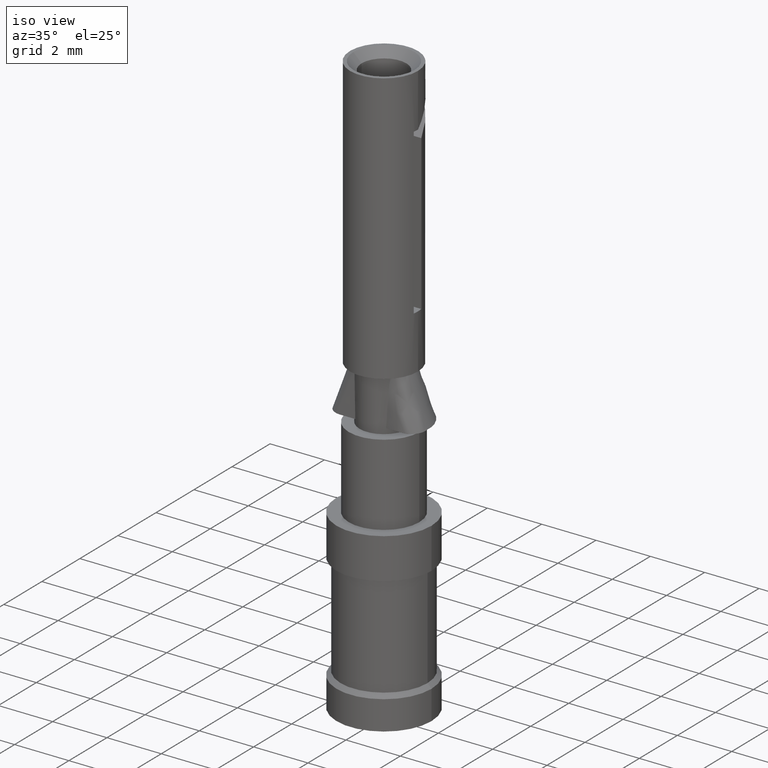
[diagram: clean part render]
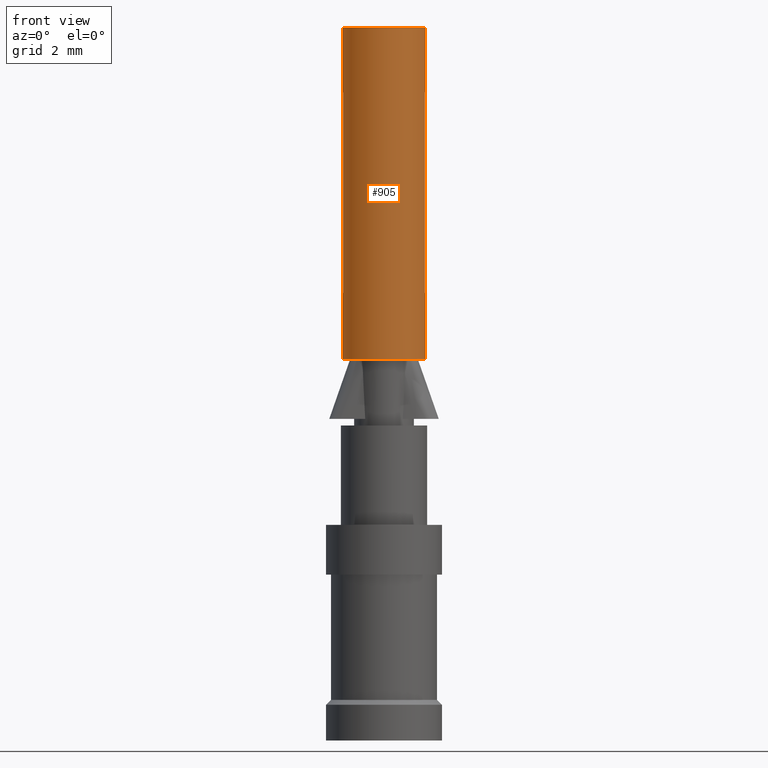
[diagram: tour spotlight — one face highlighted and labeled with its STEP entity id]
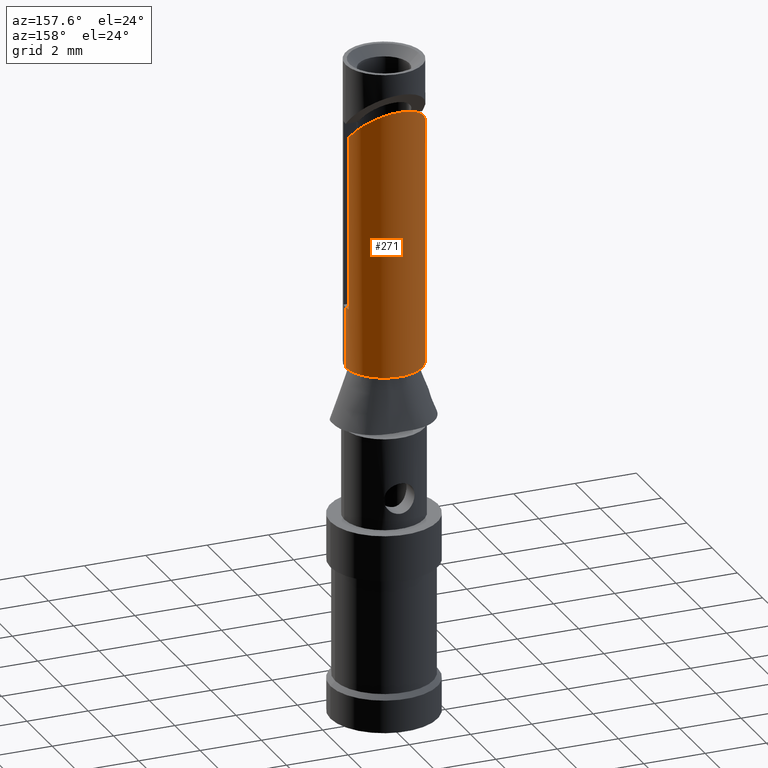
[diagram: tour spotlight — one face highlighted and labeled with its STEP entity id]
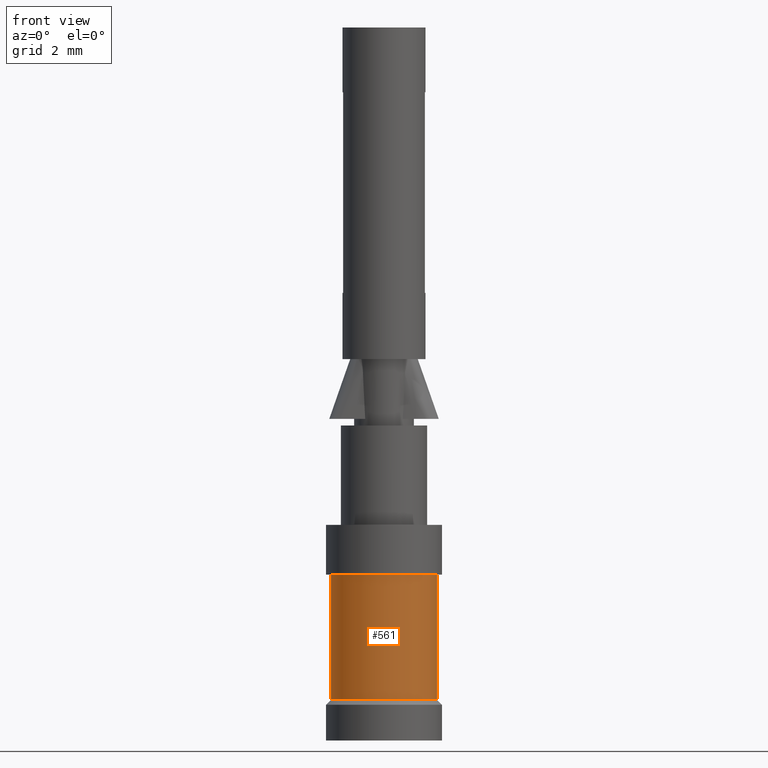
[diagram: tour spotlight — one face highlighted and labeled with its STEP entity id]
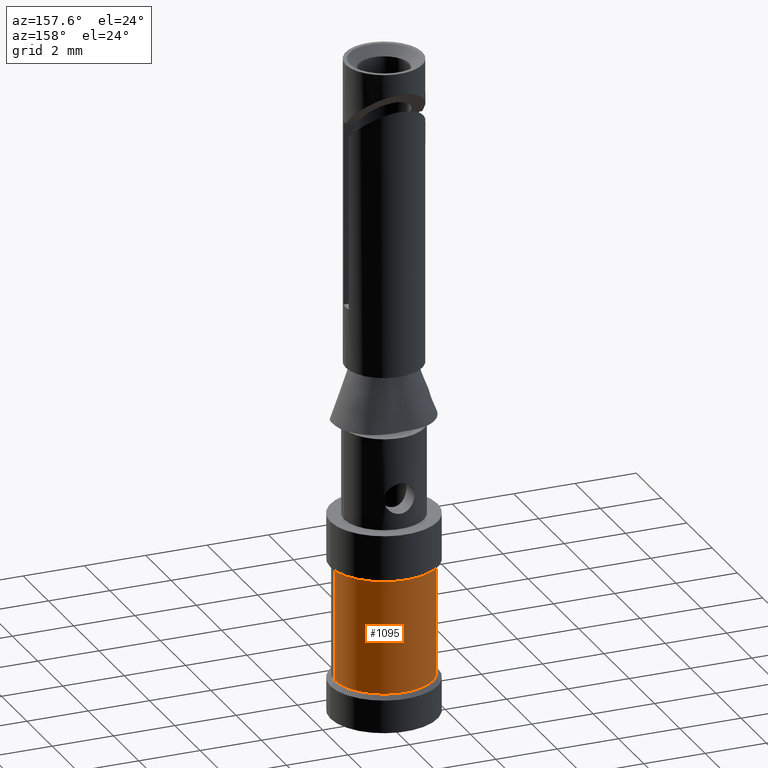
[diagram: tour spotlight — one face highlighted and labeled with its STEP entity id]
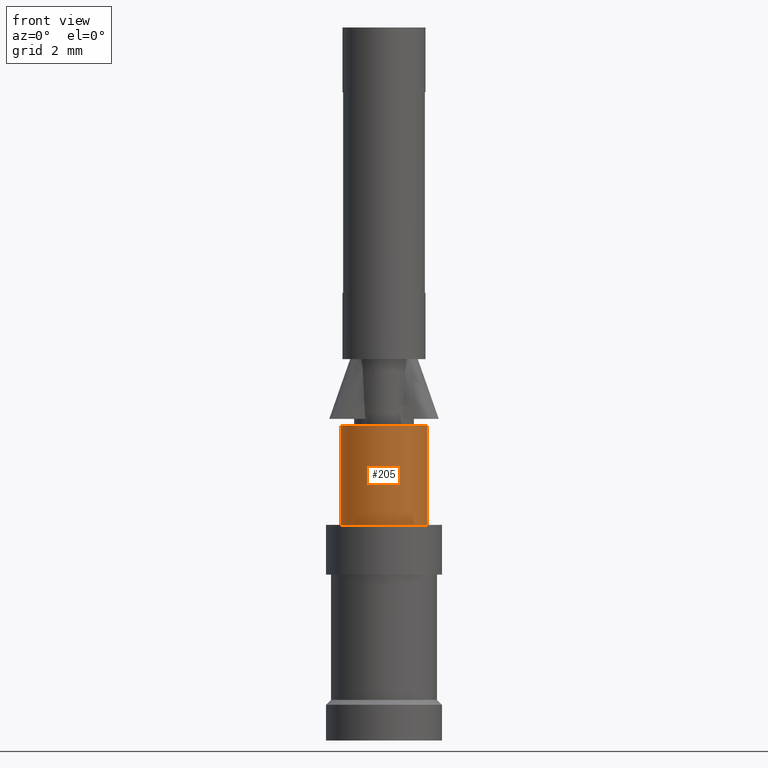
[diagram: tour spotlight — one face highlighted and labeled with its STEP entity id]
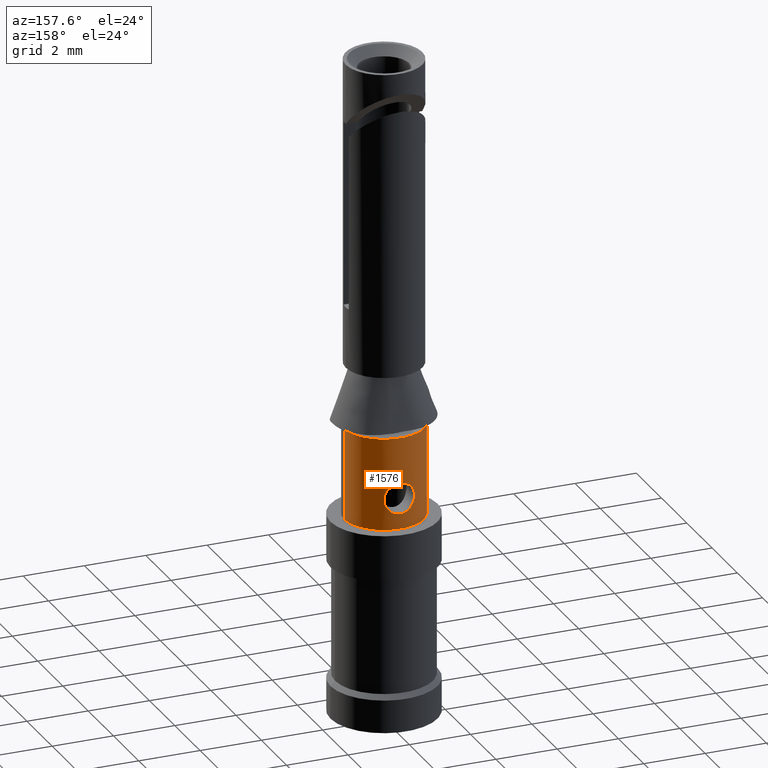
[diagram: tour spotlight — one face highlighted and labeled with its STEP entity id]
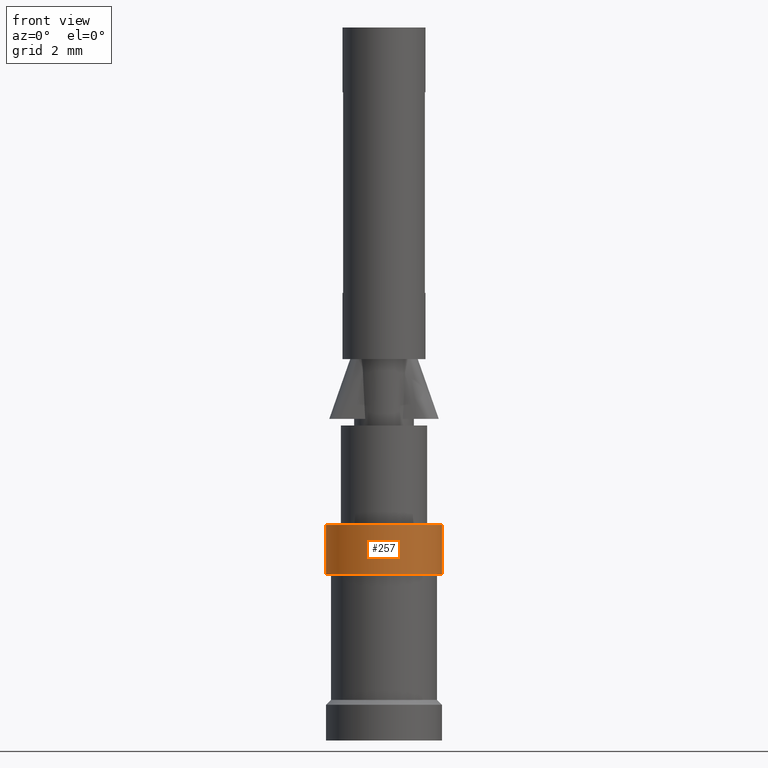
[diagram: tour spotlight — one face highlighted and labeled with its STEP entity id]
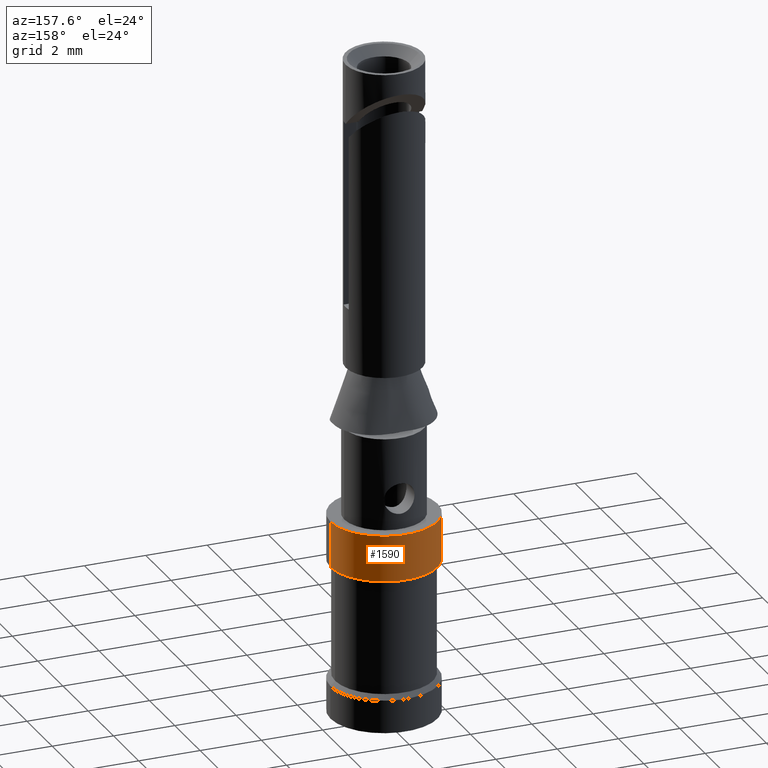
[diagram: tour spotlight — one face highlighted and labeled with its STEP entity id]
A machine part: a face-by-face anatomy tour. The part has 52 B-rep faces; the first image is the clean iso view, then the 8 largest visible faces are spotlighted one at a time (largest first), each with its STEP entity span.

Face 1 — front view, entity #905. In plain terms, the highlighted cylindrical surface (partial cylindrical patch) has radius 1.25 mm, axis along (0, 0, 1).
Definition (entity closure, byte-faithful):
#18 = ORIENTED_EDGE ( 'NONE', *, *, #750, .F. ) ;
#20 = ORIENTED_EDGE ( 'NONE', *, *, #1724, .F. ) ;
#61 = EDGE_CURVE ( 'NONE', #651, #1388, #1192, .T. ) ;
#68 = LINE ( 'NONE', #621, #1544 ) ;
#95 = VERTEX_POINT ( 'NONE', #1209 ) ;
#118 = ORIENTED_EDGE ( 'NONE', *, *, #723, .T. ) ;
#125 = LINE ( 'NONE', #695, #1467 ) ;
#131 = VECTOR ( 'NONE', #725, 1000.000000000000000 ) ;
#145 = CARTESIAN_POINT ( 'NONE',  ( 1.250000000000000000, 0.000000000000000000, 11.50000000000000000 ) ) ;
#153 = CIRCLE ( 'NONE', #1684, 1.250000000000000000 ) ;
#157 = ORIENTED_EDGE ( 'NONE', *, *, #1552, .F. ) ;
#158 = AXIS2_PLACEMENT_3D ( 'NONE', #1074, #1633, #1444 ) ;
#183 = CIRCLE ( 'NONE', #158, 1.250000000000000000 ) ;
#197 = ORIENTED_EDGE ( 'NONE', *, *, #372, .F. ) ;
#201 = ORIENTED_EDGE ( 'NONE', *, *, #1165, .F. ) ;
#211 = AXIS2_PLACEMENT_3D ( 'NONE', #1754, #936, #421 ) ;
#213 = DIRECTION ( 'NONE',  ( 0.000000000000000000, 0.000000000000000000, -1.000000000000000000 ) ) ;
#220 = ORIENTED_EDGE ( 'NONE', *, *, #628, .F. ) ;
#245 = LINE ( 'NONE', #1484, #470 ) ;
#256 = EDGE_CURVE ( 'NONE', #420, #1771, #844, .T. ) ;
#273 = VERTEX_POINT ( 'NONE', #1254 ) ;
#372 = EDGE_CURVE ( 'NONE', #503, #1587, #577, .T. ) ;
#412 = CIRCLE ( 'NONE', #931, 1.250000000000000000 ) ;
#420 = VERTEX_POINT ( 'NONE', #1683 ) ;
#421 = DIRECTION ( 'NONE',  ( -1.000000000000000000, 0.000000000000000000, 0.000000000000000000 ) ) ;
#425 = DIRECTION ( 'NONE',  ( 0.000000000000000000, 0.000000000000000000, 1.000000000000000000 ) ) ;
#470 = VECTOR ( 'NONE', #793, 1000.000000000000000 ) ;
#503 = VERTEX_POINT ( 'NONE', #1474 ) ;
#505 = CARTESIAN_POINT ( 'NONE',  ( 0.000000000000000000, 0.000000000000000000, 13.50000000000000000 ) ) ;
#509 = VERTEX_POINT ( 'NONE', #1735 ) ;
#544 = ORIENTED_EDGE ( 'NONE', *, *, #1631, .F. ) ;
#562 = VERTEX_POINT ( 'NONE', #639 ) ;
#577 = LINE ( 'NONE', #1010, #131 ) ;
#589 = EDGE_CURVE ( 'NONE', #420, #1314, #183, .T. ) ;
#591 = AXIS2_PLACEMENT_3D ( 'NONE', #743, #891, #1438 ) ;
#621 = CARTESIAN_POINT ( 'NONE',  ( 1.233896267925309820, -0.2000000000000000111, 11.50000000000000000 ) ) ;
#628 = EDGE_CURVE ( 'NONE', #1314, #273, #68, .T. ) ;
#639 = CARTESIAN_POINT ( 'NONE',  ( -1.233896267925309820, -0.2000000000000000111, 13.50000000000000000 ) ) ;
#640 = CARTESIAN_POINT ( 'NONE',  ( 1.250000000000000000, 0.000000000000000000, 13.50000000000000000 ) ) ;
#651 = VERTEX_POINT ( 'NONE', #1391 ) ;
#675 = CARTESIAN_POINT ( 'NONE',  ( 0.000000000000000000, 0.000000000000000000, 11.50000000000000000 ) ) ;
#695 = CARTESIAN_POINT ( 'NONE',  ( -1.233896267925309820, -0.2000000000000000111, 11.50000000000000000 ) ) ;
#723 = EDGE_CURVE ( 'NONE', #1388, #1547, #1174, .T. ) ;
#725 = DIRECTION ( 'NONE',  ( 0.000000000000000000, 0.000000000000000000, 1.000000000000000000 ) ) ;
#743 = CARTESIAN_POINT ( 'NONE',  ( 0.000000000000000000, 0.000000000000000000, 11.50000000000000000 ) ) ;
#750 = EDGE_CURVE ( 'NONE', #95, #562, #994, .T. ) ;
#793 = DIRECTION ( 'NONE',  ( 0.000000000000000000, 0.000000000000000000, 1.000000000000000000 ) ) ;
#812 = DIRECTION ( 'NONE',  ( 0.000000000000000000, 0.000000000000000000, 1.000000000000000000 ) ) ;
#844 = LINE ( 'NONE', #145, #1136 ) ;
#891 = DIRECTION ( 'NONE',  ( 0.000000000000000000, 0.000000000000000000, 1.000000000000000000 ) ) ;
#905 = ADVANCED_FACE ( 'NONE', ( #1072 ), #1630, .T. ) ;
#909 = DIRECTION ( 'NONE',  ( 0.000000000000000000, 0.000000000000000000, 1.000000000000000000 ) ) ;
#931 = AXIS2_PLACEMENT_3D ( 'NONE', #505, #909, #1765 ) ;
#936 = DIRECTION ( 'NONE',  ( 0.000000000000000000, 0.000000000000000000, 1.000000000000000000 ) ) ;
#994 = CIRCLE ( 'NONE', #211, 1.250000000000000000 ) ;
#1010 = CARTESIAN_POINT ( 'NONE',  ( -1.250000000000000000, 1.530808498934191571E-16, 11.50000000000000000 ) ) ;
#1015 = AXIS2_PLACEMENT_3D ( 'NONE', #675, #1258, #1410 ) ;
#1022 = CARTESIAN_POINT ( 'NONE',  ( 0.000000000000000000, 0.000000000000000000, 21.50000000000000000 ) ) ;
#1044 = DIRECTION ( 'NONE',  ( 0.000000000000000000, 0.000000000000000000, 1.000000000000000000 ) ) ;
#1063 = AXIS2_PLACEMENT_3D ( 'NONE', #1022, #1191, #1173 ) ;
#1066 = DIRECTION ( 'NONE',  ( -1.000000000000000000, 0.000000000000000000, 0.000000000000000000 ) ) ;
#1068 = ORIENTED_EDGE ( 'NONE', *, *, #1495, .F. ) ;
#1072 = FACE_OUTER_BOUND ( 'NONE', #1763, .T. ) ;
#1074 = CARTESIAN_POINT ( 'NONE',  ( 0.000000000000000000, 0.000000000000000000, 19.55000000000000071 ) ) ;
#1136 = VECTOR ( 'NONE', #425, 1000.000000000000000 ) ;
#1165 = EDGE_CURVE ( 'NONE', #1587, #1771, #1294, .T. ) ;
#1173 = DIRECTION ( 'NONE',  ( 1.000000000000000000, 0.000000000000000000, 0.000000000000000000 ) ) ;
#1174 = LINE ( 'NONE', #1733, #1775 ) ;
#1191 = DIRECTION ( 'NONE',  ( 0.000000000000000000, 0.000000000000000000, 1.000000000000000000 ) ) ;
#1192 = CIRCLE ( 'NONE', #591, 1.250000000000000000 ) ;
#1198 = CARTESIAN_POINT ( 'NONE',  ( 0.000000000000000000, 0.000000000000000000, 19.55000000000000071 ) ) ;
#1209 = CARTESIAN_POINT ( 'NONE',  ( -1.250000000000000000, 1.530808498934191571E-16, 13.50000000000000000 ) ) ;
#1238 = CARTESIAN_POINT ( 'NONE',  ( 1.250000000000000000, 0.000000000000000000, 21.50000000000000000 ) ) ;
#1254 = CARTESIAN_POINT ( 'NONE',  ( 1.233896267925309820, -0.2000000000000000111, 13.50000000000000000 ) ) ;
#1258 = DIRECTION ( 'NONE',  ( 0.000000000000000000, 0.000000000000000000, 1.000000000000000000 ) ) ;
#1294 = CIRCLE ( 'NONE', #1063, 1.250000000000000000 ) ;
#1314 = VERTEX_POINT ( 'NONE', #1677 ) ;
#1388 = VERTEX_POINT ( 'NONE', #1549 ) ;
#1391 = CARTESIAN_POINT ( 'NONE',  ( -1.250000000000000000, 1.530808498934191571E-16, 11.50000000000000000 ) ) ;
#1410 = DIRECTION ( 'NONE',  ( 1.000000000000000000, 0.000000000000000000, 0.000000000000000000 ) ) ;
#1438 = DIRECTION ( 'NONE',  ( 1.000000000000000000, 0.000000000000000000, 0.000000000000000000 ) ) ;
#1444 = DIRECTION ( 'NONE',  ( -1.000000000000000000, 0.000000000000000000, 0.000000000000000000 ) ) ;
#1467 = VECTOR ( 'NONE', #812, 1000.000000000000000 ) ;
#1474 = CARTESIAN_POINT ( 'NONE',  ( -1.250000000000000000, -3.220164666810009986E-15, 19.55000000000000071 ) ) ;
#1484 = CARTESIAN_POINT ( 'NONE',  ( -1.250000000000000000, 1.530808498934191571E-16, 11.50000000000000000 ) ) ;
#1493 = CARTESIAN_POINT ( 'NONE',  ( -1.250000000000000000, 1.530808498934191571E-16, 21.50000000000000000 ) ) ;
#1495 = EDGE_CURVE ( 'NONE', #651, #95, #245, .T. ) ;
#1513 = ORIENTED_EDGE ( 'NONE', *, *, #256, .T. ) ;
#1544 = VECTOR ( 'NONE', #213, 1000.000000000000000 ) ;
#1545 = ORIENTED_EDGE ( 'NONE', *, *, #589, .F. ) ;
#1547 = VERTEX_POINT ( 'NONE', #640 ) ;
#1549 = CARTESIAN_POINT ( 'NONE',  ( 1.250000000000000000, 0.000000000000000000, 11.50000000000000000 ) ) ;
#1552 = EDGE_CURVE ( 'NONE', #273, #1547, #412, .T. ) ;
#1587 = VERTEX_POINT ( 'NONE', #1493 ) ;
#1630 = CYLINDRICAL_SURFACE ( 'NONE', #1015, 1.250000000000000000 ) ;
#1631 = EDGE_CURVE ( 'NONE', #509, #503, #153, .T. ) ;
#1633 = DIRECTION ( 'NONE',  ( 0.000000000000000000, 0.000000000000000000, -1.000000000000000000 ) ) ;
#1641 = ORIENTED_EDGE ( 'NONE', *, *, #61, .T. ) ;
#1677 = CARTESIAN_POINT ( 'NONE',  ( 1.233896267925309820, -0.2000000000000000111, 19.55000000000000071 ) ) ;
#1683 = CARTESIAN_POINT ( 'NONE',  ( 1.250000000000000000, -4.187992942670209660E-15, 19.55000000000000071 ) ) ;
#1684 = AXIS2_PLACEMENT_3D ( 'NONE', #1198, #1757, #1066 ) ;
#1724 = EDGE_CURVE ( 'NONE', #562, #509, #125, .T. ) ;
#1733 = CARTESIAN_POINT ( 'NONE',  ( 1.250000000000000000, 0.000000000000000000, 11.50000000000000000 ) ) ;
#1735 = CARTESIAN_POINT ( 'NONE',  ( -1.233896267925309820, -0.2000000000000000111, 19.55000000000000071 ) ) ;
#1754 = CARTESIAN_POINT ( 'NONE',  ( 0.000000000000000000, 0.000000000000000000, 13.50000000000000000 ) ) ;
#1757 = DIRECTION ( 'NONE',  ( 0.000000000000000000, 0.000000000000000000, -1.000000000000000000 ) ) ;
#1763 = EDGE_LOOP ( 'NONE', ( #1068, #1641, #118, #157, #220, #1545, #1513, #201, #197, #544, #20, #18 ) ) ;
#1765 = DIRECTION ( 'NONE',  ( -1.000000000000000000, 0.000000000000000000, 0.000000000000000000 ) ) ;
#1771 = VERTEX_POINT ( 'NONE', #1238 ) ;
#1775 = VECTOR ( 'NONE', #1044, 1000.000000000000000 ) ;

Face 2 — auxiliary view, entity #271. In plain terms, the highlighted cylindrical surface (partial cylindrical patch) has radius 1.25 mm, axis along (0, 0, 1).
Definition (entity closure, byte-faithful):
#54 = EDGE_CURVE ( 'NONE', #1388, #651, #127, .T. ) ;
#86 = DIRECTION ( 'NONE',  ( 0.000000000000000000, 0.000000000000000000, 1.000000000000000000 ) ) ;
#95 = VERTEX_POINT ( 'NONE', #1209 ) ;
#127 = CIRCLE ( 'NONE', #937, 1.250000000000000000 ) ;
#129 = ORIENTED_EDGE ( 'NONE', *, *, #54, .T. ) ;
#130 = CARTESIAN_POINT ( 'NONE',  ( 1.233896267925309820, 0.2000000000000000111, 19.18431457505079862 ) ) ;
#154 = CARTESIAN_POINT ( 'NONE',  ( 0.000000000000000000, 0.000000000000000000, 11.50000000000000000 ) ) ;
#184 = EDGE_CURVE ( 'NONE', #828, #1637, #1195, .T. ) ;
#221 = DIRECTION ( 'NONE',  ( -1.000000000000000000, 0.000000000000000000, 0.000000000000000000 ) ) ;
#227 = CARTESIAN_POINT ( 'NONE',  ( 0.000000000000000000, 0.000000000000000000, 13.50000000000000000 ) ) ;
#245 = LINE ( 'NONE', #1484, #470 ) ;
#271 = ADVANCED_FACE ( 'NONE', ( #707 ), #417, .T. ) ;
#297 = VECTOR ( 'NONE', #438, 1000.000000000000000 ) ;
#349 = CARTESIAN_POINT ( 'NONE',  ( -0.9347698999434149725, 2.045454545454548967, 21.02976912050534963 ) ) ;
#354 = AXIS2_PLACEMENT_3D ( 'NONE', #1056, #86, #221 ) ;
#397 = CARTESIAN_POINT ( 'NONE',  ( -1.233896267925309820, 0.2000000000000000111, 13.50000000000000000 ) ) ;
#417 = CYLINDRICAL_SURFACE ( 'NONE', #1376, 1.250000000000000000 ) ;
#432 = ORIENTED_EDGE ( 'NONE', *, *, #1134, .F. ) ;
#438 = DIRECTION ( 'NONE',  ( 0.000000000000000000, 0.000000000000000000, 1.000000000000000000 ) ) ;
#441 = EDGE_CURVE ( 'NONE', #828, #1078, #1290, .T. ) ;
#470 = VECTOR ( 'NONE', #793, 1000.000000000000000 ) ;
#479 = CARTESIAN_POINT ( 'NONE',  ( 0.000000000000000000, 0.000000000000000000, 11.50000000000000000 ) ) ;
#514 = ORIENTED_EDGE ( 'NONE', *, *, #535, .F. ) ;
#535 = EDGE_CURVE ( 'NONE', #1547, #1078, #737, .T. ) ;
#579 = ORIENTED_EDGE ( 'NONE', *, *, #184, .F. ) ;
#600 = DIRECTION ( 'NONE',  ( 1.000000000000000000, 0.000000000000000000, 0.000000000000000000 ) ) ;
#640 = CARTESIAN_POINT ( 'NONE',  ( 1.250000000000000000, 0.000000000000000000, 13.50000000000000000 ) ) ;
#645 = DIRECTION ( 'NONE',  ( -1.000000000000000000, 0.000000000000000000, 0.000000000000000000 ) ) ;
#651 = VERTEX_POINT ( 'NONE', #1391 ) ;
#691 = VERTEX_POINT ( 'NONE', #397 ) ;
#707 = FACE_OUTER_BOUND ( 'NONE', #1716, .T. ) ;
#718 = LINE ( 'NONE', #988, #297 ) ;
#723 = EDGE_CURVE ( 'NONE', #1388, #1547, #1174, .T. ) ;
#737 = CIRCLE ( 'NONE', #354, 1.250000000000000000 ) ;
#778 = DIRECTION ( 'NONE',  ( 0.000000000000000000, 0.000000000000000000, 1.000000000000000000 ) ) ;
#793 = DIRECTION ( 'NONE',  ( 0.000000000000000000, 0.000000000000000000, 1.000000000000000000 ) ) ;
#814 = CIRCLE ( 'NONE', #1395, 1.250000000000000000 ) ;
#828 = VERTEX_POINT ( 'NONE', #130 ) ;
#831 = DIRECTION ( 'NONE',  ( 1.000000000000000000, 0.000000000000000000, 0.000000000000000000 ) ) ;
#848 = ORIENTED_EDGE ( 'NONE', *, *, #1495, .T. ) ;
#937 = AXIS2_PLACEMENT_3D ( 'NONE', #479, #1417, #600 ) ;
#953 = EDGE_CURVE ( 'NONE', #691, #1637, #718, .T. ) ;
#976 = DIRECTION ( 'NONE',  ( 0.000000000000000000, 0.000000000000000000, 1.000000000000000000 ) ) ;
#988 = CARTESIAN_POINT ( 'NONE',  ( -1.233896267925309820, 0.2000000000000000111, 11.50000000000000000 ) ) ;
#1030 = CARTESIAN_POINT ( 'NONE',  ( 1.233896267925309820, 0.2000000000000000111, 13.50000000000000000 ) ) ;
#1044 = DIRECTION ( 'NONE',  ( 0.000000000000000000, 0.000000000000000000, 1.000000000000000000 ) ) ;
#1056 = CARTESIAN_POINT ( 'NONE',  ( 0.000000000000000000, 0.000000000000000000, 13.50000000000000000 ) ) ;
#1078 = VERTEX_POINT ( 'NONE', #1030 ) ;
#1089 = ORIENTED_EDGE ( 'NONE', *, *, #441, .T. ) ;
#1127 = DIRECTION ( 'NONE',  ( 0.000000000000000000, 0.000000000000000000, -1.000000000000000000 ) ) ;
#1134 = EDGE_CURVE ( 'NONE', #691, #95, #814, .T. ) ;
#1174 = LINE ( 'NONE', #1733, #1775 ) ;
#1193 = VECTOR ( 'NONE', #1127, 1000.000000000000000 ) ;
#1195 =( BOUNDED_CURVE ( )  B_SPLINE_CURVE ( 3, ( #1592, #1625, #349, #1377 ),
 .UNSPECIFIED., .F., .T. ) 
 B_SPLINE_CURVE_WITH_KNOTS ( ( 4, 4 ),
 ( 4.873079633336599770, 7.693290981022572694 ),
 .UNSPECIFIED. ) 
 CURVE ( )  GEOMETRIC_REPRESENTATION_ITEM ( )  RATIONAL_B_SPLINE_CURVE ( ( 1.000000000000000000, 0.4399999999999997247, 0.4399999999999997247, 1.000000000000000000 ) ) 
 REPRESENTATION_ITEM ( '' )  );
#1209 = CARTESIAN_POINT ( 'NONE',  ( -1.250000000000000000, 1.530808498934191571E-16, 13.50000000000000000 ) ) ;
#1259 = ORIENTED_EDGE ( 'NONE', *, *, #723, .F. ) ;
#1262 = CARTESIAN_POINT ( 'NONE',  ( 1.233896267925309820, 0.2000000000000000111, 11.50000000000000000 ) ) ;
#1290 = LINE ( 'NONE', #1262, #1193 ) ;
#1334 = ORIENTED_EDGE ( 'NONE', *, *, #953, .T. ) ;
#1376 = AXIS2_PLACEMENT_3D ( 'NONE', #154, #976, #831 ) ;
#1377 = CARTESIAN_POINT ( 'NONE',  ( -1.233896267925309820, 0.2000000000000000111, 19.18431457505079862 ) ) ;
#1388 = VERTEX_POINT ( 'NONE', #1549 ) ;
#1391 = CARTESIAN_POINT ( 'NONE',  ( -1.250000000000000000, 1.530808498934191571E-16, 11.50000000000000000 ) ) ;
#1395 = AXIS2_PLACEMENT_3D ( 'NONE', #227, #778, #645 ) ;
#1417 = DIRECTION ( 'NONE',  ( 0.000000000000000000, 0.000000000000000000, 1.000000000000000000 ) ) ;
#1484 = CARTESIAN_POINT ( 'NONE',  ( -1.250000000000000000, 1.530808498934191571E-16, 11.50000000000000000 ) ) ;
#1495 = EDGE_CURVE ( 'NONE', #651, #95, #245, .T. ) ;
#1547 = VERTEX_POINT ( 'NONE', #640 ) ;
#1549 = CARTESIAN_POINT ( 'NONE',  ( 1.250000000000000000, 0.000000000000000000, 11.50000000000000000 ) ) ;
#1592 = CARTESIAN_POINT ( 'NONE',  ( 1.233896267925309820, 0.2000000000000000111, 19.18431457505079862 ) ) ;
#1624 = CARTESIAN_POINT ( 'NONE',  ( -1.233896267925309820, 0.2000000000000000111, 19.18431457505079862 ) ) ;
#1625 = CARTESIAN_POINT ( 'NONE',  ( 0.9347698999434153055, 2.045454545454548523, 21.02976912050534963 ) ) ;
#1637 = VERTEX_POINT ( 'NONE', #1624 ) ;
#1716 = EDGE_LOOP ( 'NONE', ( #129, #848, #432, #1334, #579, #1089, #514, #1259 ) ) ;
#1733 = CARTESIAN_POINT ( 'NONE',  ( 1.250000000000000000, 0.000000000000000000, 11.50000000000000000 ) ) ;
#1775 = VECTOR ( 'NONE', #1044, 1000.000000000000000 ) ;

Face 3 — front view, entity #561. In plain terms, the highlighted cylindrical surface (partial cylindrical patch) has radius 1.6 mm, axis along (0, 0, 1).
Definition (entity closure, byte-faithful):
#12 = CARTESIAN_POINT ( 'NONE',  ( 1.600000000000000089, 2.051283388406958023E-16, 1.224999999999999867 ) ) ;
#39 = DIRECTION ( 'NONE',  ( 0.000000000000000000, 0.000000000000000000, 1.000000000000000000 ) ) ;
#71 = ORIENTED_EDGE ( 'NONE', *, *, #1013, .T. ) ;
#182 = CARTESIAN_POINT ( 'NONE',  ( 5.421010862427519705E-17, 0.000000000000000000, 1.224999999999999867 ) ) ;
#270 = CARTESIAN_POINT ( 'NONE',  ( 1.600000000000000089, 0.000000000000000000, 1.000000000000000000 ) ) ;
#303 = AXIS2_PLACEMENT_3D ( 'NONE', #773, #1623, #1613 ) ;
#322 = CIRCLE ( 'NONE', #1366, 1.600000000000000089 ) ;
#333 = CARTESIAN_POINT ( 'NONE',  ( -1.600000000000000089, 1.959434878635765230E-16, 5.000000000000000000 ) ) ;
#381 = CARTESIAN_POINT ( 'NONE',  ( -1.600000000000000089, 0.000000000000000000, 1.224999999999999867 ) ) ;
#494 = CIRCLE ( 'NONE', #1182, 1.600000000000000089 ) ;
#524 = FACE_OUTER_BOUND ( 'NONE', #918, .T. ) ;
#561 = ADVANCED_FACE ( 'NONE', ( #524 ), #1176, .T. ) ;
#573 = EDGE_CURVE ( 'NONE', #1270, #1167, #928, .T. ) ;
#622 = CARTESIAN_POINT ( 'NONE',  ( 5.421010862427519705E-17, 0.000000000000000000, 5.000000000000000000 ) ) ;
#710 = VERTEX_POINT ( 'NONE', #12 ) ;
#771 = EDGE_CURVE ( 'NONE', #710, #1593, #1778, .T. ) ;
#773 = CARTESIAN_POINT ( 'NONE',  ( 5.421010862427519705E-17, 0.000000000000000000, 1.000000000000000000 ) ) ;
#782 = CARTESIAN_POINT ( 'NONE',  ( -1.600000000000000089, 1.959434878635765230E-16, 1.000000000000000000 ) ) ;
#918 = EDGE_LOOP ( 'NONE', ( #1201, #71, #1440, #989 ) ) ;
#928 = LINE ( 'NONE', #782, #1309 ) ;
#989 = ORIENTED_EDGE ( 'NONE', *, *, #1426, .F. ) ;
#1013 = EDGE_CURVE ( 'NONE', #1270, #710, #494, .T. ) ;
#1035 = CARTESIAN_POINT ( 'NONE',  ( 1.600000000000000089, 0.000000000000000000, 5.000000000000000000 ) ) ;
#1137 = DIRECTION ( 'NONE',  ( 1.000000000000000000, 0.000000000000000000, 0.000000000000000000 ) ) ;
#1167 = VERTEX_POINT ( 'NONE', #333 ) ;
#1176 = CYLINDRICAL_SURFACE ( 'NONE', #303, 1.600000000000000089 ) ;
#1182 = AXIS2_PLACEMENT_3D ( 'NONE', #182, #1698, #1679 ) ;
#1201 = ORIENTED_EDGE ( 'NONE', *, *, #573, .F. ) ;
#1270 = VERTEX_POINT ( 'NONE', #381 ) ;
#1309 = VECTOR ( 'NONE', #1335, 1000.000000000000000 ) ;
#1335 = DIRECTION ( 'NONE',  ( 0.000000000000000000, 0.000000000000000000, 1.000000000000000000 ) ) ;
#1352 = DIRECTION ( 'NONE',  ( 0.000000000000000000, 0.000000000000000000, 1.000000000000000000 ) ) ;
#1366 = AXIS2_PLACEMENT_3D ( 'NONE', #622, #39, #1137 ) ;
#1371 = VECTOR ( 'NONE', #1352, 1000.000000000000000 ) ;
#1426 = EDGE_CURVE ( 'NONE', #1167, #1593, #322, .T. ) ;
#1440 = ORIENTED_EDGE ( 'NONE', *, *, #771, .T. ) ;
#1593 = VERTEX_POINT ( 'NONE', #1035 ) ;
#1613 = DIRECTION ( 'NONE',  ( 1.000000000000000000, 0.000000000000000000, 0.000000000000000000 ) ) ;
#1623 = DIRECTION ( 'NONE',  ( 0.000000000000000000, 0.000000000000000000, 1.000000000000000000 ) ) ;
#1679 = DIRECTION ( 'NONE',  ( -1.000000000000000000, 0.000000000000000000, 0.000000000000000000 ) ) ;
#1698 = DIRECTION ( 'NONE',  ( 0.000000000000000000, 0.000000000000000000, 1.000000000000000000 ) ) ;
#1778 = LINE ( 'NONE', #270, #1371 ) ;

Face 4 — auxiliary view, entity #1095. In plain terms, the highlighted cylindrical surface (partial cylindrical patch) has radius 1.6 mm, axis along (0, 0, 1).
Definition (entity closure, byte-faithful):
#12 = CARTESIAN_POINT ( 'NONE',  ( 1.600000000000000089, 2.051283388406958023E-16, 1.224999999999999867 ) ) ;
#37 = ORIENTED_EDGE ( 'NONE', *, *, #573, .T. ) ;
#72 = DIRECTION ( 'NONE',  ( 1.000000000000000000, 0.000000000000000000, 0.000000000000000000 ) ) ;
#217 = CYLINDRICAL_SURFACE ( 'NONE', #526, 1.600000000000000089 ) ;
#270 = CARTESIAN_POINT ( 'NONE',  ( 1.600000000000000089, 0.000000000000000000, 1.000000000000000000 ) ) ;
#332 = EDGE_LOOP ( 'NONE', ( #676, #37, #1115, #1264 ) ) ;
#333 = CARTESIAN_POINT ( 'NONE',  ( -1.600000000000000089, 1.959434878635765230E-16, 5.000000000000000000 ) ) ;
#342 = CARTESIAN_POINT ( 'NONE',  ( 5.421010862427519705E-17, 0.000000000000000000, 1.000000000000000000 ) ) ;
#381 = CARTESIAN_POINT ( 'NONE',  ( -1.600000000000000089, 0.000000000000000000, 1.224999999999999867 ) ) ;
#463 = EDGE_CURVE ( 'NONE', #1593, #1167, #592, .T. ) ;
#499 = FACE_OUTER_BOUND ( 'NONE', #332, .T. ) ;
#504 = DIRECTION ( 'NONE',  ( 1.000000000000000000, 0.000000000000000000, 0.000000000000000000 ) ) ;
#526 = AXIS2_PLACEMENT_3D ( 'NONE', #342, #1312, #72 ) ;
#573 = EDGE_CURVE ( 'NONE', #1270, #1167, #928, .T. ) ;
#592 = CIRCLE ( 'NONE', #1281, 1.600000000000000089 ) ;
#607 = CARTESIAN_POINT ( 'NONE',  ( 5.421010862427519705E-17, 0.000000000000000000, 1.224999999999999867 ) ) ;
#659 = CARTESIAN_POINT ( 'NONE',  ( 5.421010862427519705E-17, 0.000000000000000000, 5.000000000000000000 ) ) ;
#676 = ORIENTED_EDGE ( 'NONE', *, *, #1408, .T. ) ;
#710 = VERTEX_POINT ( 'NONE', #12 ) ;
#757 = DIRECTION ( 'NONE',  ( 0.000000000000000000, 0.000000000000000000, 1.000000000000000000 ) ) ;
#771 = EDGE_CURVE ( 'NONE', #710, #1593, #1778, .T. ) ;
#782 = CARTESIAN_POINT ( 'NONE',  ( -1.600000000000000089, 1.959434878635765230E-16, 1.000000000000000000 ) ) ;
#815 = AXIS2_PLACEMENT_3D ( 'NONE', #607, #757, #863 ) ;
#863 = DIRECTION ( 'NONE',  ( -1.000000000000000000, 0.000000000000000000, 0.000000000000000000 ) ) ;
#908 = DIRECTION ( 'NONE',  ( 0.000000000000000000, 0.000000000000000000, 1.000000000000000000 ) ) ;
#928 = LINE ( 'NONE', #782, #1309 ) ;
#1035 = CARTESIAN_POINT ( 'NONE',  ( 1.600000000000000089, 0.000000000000000000, 5.000000000000000000 ) ) ;
#1095 = ADVANCED_FACE ( 'NONE', ( #499 ), #217, .T. ) ;
#1115 = ORIENTED_EDGE ( 'NONE', *, *, #463, .F. ) ;
#1167 = VERTEX_POINT ( 'NONE', #333 ) ;
#1264 = ORIENTED_EDGE ( 'NONE', *, *, #771, .F. ) ;
#1270 = VERTEX_POINT ( 'NONE', #381 ) ;
#1281 = AXIS2_PLACEMENT_3D ( 'NONE', #659, #908, #504 ) ;
#1309 = VECTOR ( 'NONE', #1335, 1000.000000000000000 ) ;
#1312 = DIRECTION ( 'NONE',  ( 0.000000000000000000, 0.000000000000000000, 1.000000000000000000 ) ) ;
#1335 = DIRECTION ( 'NONE',  ( 0.000000000000000000, 0.000000000000000000, 1.000000000000000000 ) ) ;
#1352 = DIRECTION ( 'NONE',  ( 0.000000000000000000, 0.000000000000000000, 1.000000000000000000 ) ) ;
#1371 = VECTOR ( 'NONE', #1352, 1000.000000000000000 ) ;
#1408 = EDGE_CURVE ( 'NONE', #710, #1270, #1595, .T. ) ;
#1593 = VERTEX_POINT ( 'NONE', #1035 ) ;
#1595 = CIRCLE ( 'NONE', #815, 1.600000000000000089 ) ;
#1778 = LINE ( 'NONE', #270, #1371 ) ;

Face 5 — front view, entity #205. In plain terms, the highlighted cylindrical surface (partial cylindrical patch) has radius 1.3 mm, axis along (0, 0, 1).
Definition (entity closure, byte-faithful):
#46 = VECTOR ( 'NONE', #986, 1000.000000000000000 ) ;
#138 = ORIENTED_EDGE ( 'NONE', *, *, #389, .T. ) ;
#147 = ORIENTED_EDGE ( 'NONE', *, *, #688, .F. ) ;
#176 = CIRCLE ( 'NONE', #268, 1.300000000000000044 ) ;
#178 = DIRECTION ( 'NONE',  ( 0.000000000000000000, 0.000000000000000000, 1.000000000000000000 ) ) ;
#205 = ADVANCED_FACE ( 'NONE', ( #1067 ), #1113, .T. ) ;
#268 = AXIS2_PLACEMENT_3D ( 'NONE', #539, #957, #692 ) ;
#291 = DIRECTION ( 'NONE',  ( 0.000000000000000000, 0.000000000000000000, 1.000000000000000000 ) ) ;
#337 = CARTESIAN_POINT ( 'NONE',  ( 5.421010862427519705E-17, 0.000000000000000000, 6.500000000000000000 ) ) ;
#359 = CIRCLE ( 'NONE', #996, 1.300000000000000044 ) ;
#389 = EDGE_CURVE ( 'NONE', #851, #987, #359, .T. ) ;
#429 = CARTESIAN_POINT ( 'NONE',  ( 1.300000000000000044, 0.000000000000000000, 6.500000000000000000 ) ) ;
#439 = ORIENTED_EDGE ( 'NONE', *, *, #1256, .T. ) ;
#539 = CARTESIAN_POINT ( 'NONE',  ( 5.421010862427519705E-17, 0.000000000000000000, 9.500000000000000000 ) ) ;
#554 = CARTESIAN_POINT ( 'NONE',  ( -1.300000000000000044, 1.592040838891559095E-16, 6.500000000000000000 ) ) ;
#635 = VERTEX_POINT ( 'NONE', #1791 ) ;
#681 = VERTEX_POINT ( 'NONE', #1235 ) ;
#688 = EDGE_CURVE ( 'NONE', #851, #635, #1085, .T. ) ;
#692 = DIRECTION ( 'NONE',  ( 1.000000000000000000, 0.000000000000000000, 0.000000000000000000 ) ) ;
#705 = CARTESIAN_POINT ( 'NONE',  ( -1.300000000000000044, 1.592040838891559095E-16, 6.500000000000000000 ) ) ;
#733 = DIRECTION ( 'NONE',  ( 1.000000000000000000, 0.000000000000000000, 0.000000000000000000 ) ) ;
#851 = VERTEX_POINT ( 'NONE', #554 ) ;
#869 = EDGE_CURVE ( 'NONE', #635, #681, #176, .T. ) ;
#957 = DIRECTION ( 'NONE',  ( 0.000000000000000000, 0.000000000000000000, 1.000000000000000000 ) ) ;
#986 = DIRECTION ( 'NONE',  ( 0.000000000000000000, 0.000000000000000000, 1.000000000000000000 ) ) ;
#987 = VERTEX_POINT ( 'NONE', #429 ) ;
#996 = AXIS2_PLACEMENT_3D ( 'NONE', #337, #178, #733 ) ;
#1067 = FACE_OUTER_BOUND ( 'NONE', #1163, .T. ) ;
#1085 = LINE ( 'NONE', #705, #1432 ) ;
#1113 = CYLINDRICAL_SURFACE ( 'NONE', #1370, 1.300000000000000044 ) ;
#1128 = CARTESIAN_POINT ( 'NONE',  ( 1.300000000000000044, 0.000000000000000000, 6.500000000000000000 ) ) ;
#1163 = EDGE_LOOP ( 'NONE', ( #147, #138, #439, #1401 ) ) ;
#1235 = CARTESIAN_POINT ( 'NONE',  ( 1.300000000000000044, 0.000000000000000000, 9.500000000000000000 ) ) ;
#1256 = EDGE_CURVE ( 'NONE', #987, #681, #1669, .T. ) ;
#1370 = AXIS2_PLACEMENT_3D ( 'NONE', #1793, #1385, #1784 ) ;
#1385 = DIRECTION ( 'NONE',  ( 0.000000000000000000, 0.000000000000000000, 1.000000000000000000 ) ) ;
#1401 = ORIENTED_EDGE ( 'NONE', *, *, #869, .F. ) ;
#1432 = VECTOR ( 'NONE', #291, 1000.000000000000000 ) ;
#1669 = LINE ( 'NONE', #1128, #46 ) ;
#1784 = DIRECTION ( 'NONE',  ( 1.000000000000000000, 0.000000000000000000, 0.000000000000000000 ) ) ;
#1791 = CARTESIAN_POINT ( 'NONE',  ( -1.300000000000000044, 1.592040838891559095E-16, 9.500000000000000000 ) ) ;
#1793 = CARTESIAN_POINT ( 'NONE',  ( 5.421010862427519705E-17, 0.000000000000000000, 6.500000000000000000 ) ) ;

Face 6 — auxiliary view, entity #1576. In plain terms, the highlighted cylindrical surface (partial cylindrical patch) has radius 1.3 mm, axis along (0, 0, 1).
Definition (entity closure, byte-faithful):
#33 = CARTESIAN_POINT ( 'NONE',  ( -0.2529664402532839640, 1.276614812475231897, 7.063766588130552471 ) ) ;
#43 = CARTESIAN_POINT ( 'NONE',  ( -0.4364941487910065643, 1.224825323454817427, 7.247486120892833839 ) ) ;
#46 = VECTOR ( 'NONE', #986, 1000.000000000000000 ) ;
#67 = EDGE_LOOP ( 'NONE', ( #324, #406, #861, #655 ) ) ;
#80 = CARTESIAN_POINT ( 'NONE',  ( 0.4450192260256795040, 1.225133508227689294, 7.761980527747958547 ) ) ;
#124 = DIRECTION ( 'NONE',  ( 0.000000000000000000, 0.000000000000000000, 1.000000000000000000 ) ) ;
#135 = EDGE_CURVE ( 'NONE', #900, #555, #200, .T. ) ;
#179 = AXIS2_PLACEMENT_3D ( 'NONE', #1465, #1728, #1601 ) ;
#200 = B_SPLINE_CURVE_WITH_KNOTS ( 'NONE', 3,
 ( #1077, #910, #623, #1750, #506, #1615, #80, #1476, #1604, #1494 ),
 .UNSPECIFIED., .F., .F.,
 ( 4, 2, 2, 2, 4 ),
 ( 0.001572192138899209659, 0.001965314600988820899, 0.002358437063078432355, 0.002751559525168043377, 0.003144681987257654833 ),
 .UNSPECIFIED. ) ;
#291 = DIRECTION ( 'NONE',  ( 0.000000000000000000, 0.000000000000000000, 1.000000000000000000 ) ) ;
#296 = CARTESIAN_POINT ( 'NONE',  ( -0.2616122245448461725, 1.276971346065668644, 7.945413580507879381 ) ) ;
#312 = CARTESIAN_POINT ( 'NONE',  ( -0.4451826981742881828, 1.225115970000525412, 7.762004921668303581 ) ) ;
#324 = ORIENTED_EDGE ( 'NONE', *, *, #629, .T. ) ;
#388 = DIRECTION ( 'NONE',  ( 0.000000000000000000, 0.000000000000000000, 1.000000000000000000 ) ) ;
#406 = ORIENTED_EDGE ( 'NONE', *, *, #688, .T. ) ;
#429 = CARTESIAN_POINT ( 'NONE',  ( 1.300000000000000044, 0.000000000000000000, 6.500000000000000000 ) ) ;
#466 = CARTESIAN_POINT ( 'NONE',  ( -0.4999318602305246051, 1.200028391566173802, 7.632084864210543884 ) ) ;
#506 = CARTESIAN_POINT ( 'NONE',  ( 0.5000760685845431208, 1.199968304762641713, 7.368372139387616038 ) ) ;
#516 = FACE_BOUND ( 'NONE', #1289, .T. ) ;
#520 = ORIENTED_EDGE ( 'NONE', *, *, #135, .T. ) ;
#554 = CARTESIAN_POINT ( 'NONE',  ( -1.300000000000000044, 1.592040838891559095E-16, 6.500000000000000000 ) ) ;
#555 = VERTEX_POINT ( 'NONE', #652 ) ;
#570 = CARTESIAN_POINT ( 'NONE',  ( -0.5000339698903231156, 1.199985845881248681, 7.434344855399660723 ) ) ;
#593 = CARTESIAN_POINT ( 'NONE',  ( -0.1320458884449187964, 1.294720542306478706, 7.013321982343081018 ) ) ;
#623 = CARTESIAN_POINT ( 'NONE',  ( 0.2617405363919825811, 1.276936712284752140, 7.054704066186963551 ) ) ;
#629 = EDGE_CURVE ( 'NONE', #987, #851, #1138, .T. ) ;
#635 = VERTEX_POINT ( 'NONE', #1791 ) ;
#652 = CARTESIAN_POINT ( 'NONE',  ( 2.295385422415389883E-16, 1.300000000000000044, 8.000000000000000000 ) ) ;
#655 = ORIENTED_EDGE ( 'NONE', *, *, #1256, .F. ) ;
#681 = VERTEX_POINT ( 'NONE', #1235 ) ;
#688 = EDGE_CURVE ( 'NONE', #851, #635, #1085, .T. ) ;
#705 = CARTESIAN_POINT ( 'NONE',  ( -1.300000000000000044, 1.592040838891559095E-16, 6.500000000000000000 ) ) ;
#728 = CARTESIAN_POINT ( 'NONE',  ( -0.1336173853536254674, 1.300000000000000266, 8.000000000000000000 ) ) ;
#765 = CARTESIAN_POINT ( 'NONE',  ( 5.421010862427519705E-17, 0.000000000000000000, 6.500000000000000000 ) ) ;
#766 = FACE_OUTER_BOUND ( 'NONE', #67, .T. ) ;
#775 = CYLINDRICAL_SURFACE ( 'NONE', #1106, 1.300000000000000044 ) ;
#851 = VERTEX_POINT ( 'NONE', #554 ) ;
#859 = CARTESIAN_POINT ( 'NONE',  ( -0.4868085936153448978, 1.205712075118779758, 7.368440909653557469 ) ) ;
#861 = ORIENTED_EDGE ( 'NONE', *, *, #1536, .F. ) ;
#865 = CARTESIAN_POINT ( 'NONE',  ( -0.06574730217777614849, 1.300000000000000044, 7.000000000000000000 ) ) ;
#900 = VERTEX_POINT ( 'NONE', #1499 ) ;
#910 = CARTESIAN_POINT ( 'NONE',  ( 0.1315195041032270473, 1.300000000000000044, 6.999999999999997335 ) ) ;
#942 = DIRECTION ( 'NONE',  ( 1.000000000000000000, 0.000000000000000000, 0.000000000000000000 ) ) ;
#954 = EDGE_CURVE ( 'NONE', #555, #900, #1597, .T. ) ;
#986 = DIRECTION ( 'NONE',  ( 0.000000000000000000, 0.000000000000000000, 1.000000000000000000 ) ) ;
#987 = VERTEX_POINT ( 'NONE', #429 ) ;
#1077 = CARTESIAN_POINT ( 'NONE',  ( 6.124302863424869615E-17, 1.300000000000000044, 6.999999999999999112 ) ) ;
#1085 = LINE ( 'NONE', #705, #1432 ) ;
#1106 = AXIS2_PLACEMENT_3D ( 'NONE', #1589, #388, #942 ) ;
#1128 = CARTESIAN_POINT ( 'NONE',  ( 1.300000000000000044, 0.000000000000000000, 6.500000000000000000 ) ) ;
#1138 = CIRCLE ( 'NONE', #1160, 1.300000000000000044 ) ;
#1155 = CIRCLE ( 'NONE', #179, 1.300000000000000044 ) ;
#1160 = AXIS2_PLACEMENT_3D ( 'NONE', #765, #124, #1217 ) ;
#1217 = DIRECTION ( 'NONE',  ( 1.000000000000000000, 0.000000000000000000, 0.000000000000000000 ) ) ;
#1235 = CARTESIAN_POINT ( 'NONE',  ( 1.300000000000000044, 0.000000000000000000, 9.500000000000000000 ) ) ;
#1256 = EDGE_CURVE ( 'NONE', #987, #681, #1669, .T. ) ;
#1276 = CARTESIAN_POINT ( 'NONE',  ( -0.4000669806187874267, 1.237841853325388541, 7.193040436890559164 ) ) ;
#1289 = EDGE_LOOP ( 'NONE', ( #1537, #520 ) ) ;
#1399 = CARTESIAN_POINT ( 'NONE',  ( 2.295385422415389883E-16, 1.300000000000000044, 8.000000000000000000 ) ) ;
#1432 = VECTOR ( 'NONE', #291, 1000.000000000000000 ) ;
#1465 = CARTESIAN_POINT ( 'NONE',  ( 5.421010862427519705E-17, 0.000000000000000000, 9.500000000000000000 ) ) ;
#1476 = CARTESIAN_POINT ( 'NONE',  ( 0.2625013654136820751, 1.276748705764267910, 7.944712200875515329 ) ) ;
#1494 = CARTESIAN_POINT ( 'NONE',  ( 2.295385422415389883E-16, 1.300000000000000044, 8.000000000000000000 ) ) ;
#1499 = CARTESIAN_POINT ( 'NONE',  ( 6.124302863424869615E-17, 1.300000000000000044, 6.999999999999999112 ) ) ;
#1536 = EDGE_CURVE ( 'NONE', #681, #635, #1155, .T. ) ;
#1537 = ORIENTED_EDGE ( 'NONE', *, *, #954, .T. ) ;
#1561 = CARTESIAN_POINT ( 'NONE',  ( 6.124302863424869615E-17, 1.300000000000000044, 6.999999999999999112 ) ) ;
#1576 = ADVANCED_FACE ( 'NONE', ( #516, #766 ), #775, .T. ) ;
#1589 = CARTESIAN_POINT ( 'NONE',  ( 5.421010862427519705E-17, 0.000000000000000000, 6.500000000000000000 ) ) ;
#1597 = B_SPLINE_CURVE_WITH_KNOTS ( 'NONE', 3,
 ( #1399, #728, #296, #312, #466, #570, #859, #43, #1276, #1671, #33, #593, #865, #1561 ),
 .UNSPECIFIED., .F., .F.,
 ( 4, 2, 2, 2, 2, 2, 4 ),
 ( 0.000000000000000000, 0.0003930480347248023064, 0.0007860960694496063475, 0.0009826200868120072568, 0.001179144104174407841, 0.001375668121536808858, 0.001572192138899209659 ),
 .UNSPECIFIED. ) ;
#1601 = DIRECTION ( 'NONE',  ( 1.000000000000000000, 0.000000000000000000, 0.000000000000000000 ) ) ;
#1604 = CARTESIAN_POINT ( 'NONE',  ( 0.1336426870699707337, 1.300000000000000044, 8.000000000000001776 ) ) ;
#1615 = CARTESIAN_POINT ( 'NONE',  ( 0.4999237647931620843, 1.200031764663307632, 7.632205133997878477 ) ) ;
#1669 = LINE ( 'NONE', #1128, #46 ) ;
#1671 = CARTESIAN_POINT ( 'NONE',  ( -0.3076509088031984529, 1.263984557317861857, 7.100464418758055452 ) ) ;
#1728 = DIRECTION ( 'NONE',  ( 0.000000000000000000, 0.000000000000000000, 1.000000000000000000 ) ) ;
#1750 = CARTESIAN_POINT ( 'NONE',  ( 0.4450951351376423171, 1.225139092612817393, 7.237918146873934866 ) ) ;
#1791 = CARTESIAN_POINT ( 'NONE',  ( -1.300000000000000044, 1.592040838891559095E-16, 9.500000000000000000 ) ) ;

Face 7 — front view, entity #257. In plain terms, the highlighted cylindrical surface (partial cylindrical patch) has radius 1.75 mm, axis along (0, 0, 1).
Definition (entity closure, byte-faithful):
#13 = FACE_OUTER_BOUND ( 'NONE', #963, .T. ) ;
#32 = ORIENTED_EDGE ( 'NONE', *, *, #1524, .T. ) ;
#105 = DIRECTION ( 'NONE',  ( 0.000000000000000000, 0.000000000000000000, 1.000000000000000000 ) ) ;
#132 = VERTEX_POINT ( 'NONE', #1178 ) ;
#142 = ORIENTED_EDGE ( 'NONE', *, *, #1097, .F. ) ;
#235 = VECTOR ( 'NONE', #1713, 1000.000000000000000 ) ;
#257 = ADVANCED_FACE ( 'NONE', ( #13 ), #266, .T. ) ;
#265 = DIRECTION ( 'NONE',  ( 0.000000000000000000, 0.000000000000000000, 1.000000000000000000 ) ) ;
#266 = CYLINDRICAL_SURFACE ( 'NONE', #1403, 1.750000000000000000 ) ;
#284 = CARTESIAN_POINT ( 'NONE',  ( -1.750000000000000000, 1.058929726022368178E-16, 6.500000000000000000 ) ) ;
#481 = LINE ( 'NONE', #625, #235 ) ;
#548 = CARTESIAN_POINT ( 'NONE',  ( -1.750000000000000000, 1.058929726022368178E-16, 5.000000000000000000 ) ) ;
#549 = DIRECTION ( 'NONE',  ( 0.000000000000000000, 0.000000000000000000, 1.000000000000000000 ) ) ;
#574 = VERTEX_POINT ( 'NONE', #1034 ) ;
#603 = VECTOR ( 'NONE', #1263, 1000.000000000000000 ) ;
#625 = CARTESIAN_POINT ( 'NONE',  ( -1.750000000000000000, 1.058929726022368178E-16, 5.000000000000000000 ) ) ;
#701 = CIRCLE ( 'NONE', #1510, 1.750000000000000000 ) ;
#708 = CARTESIAN_POINT ( 'NONE',  ( 1.750000000000000000, -1.084202172485499997E-16, 5.000000000000000000 ) ) ;
#777 = ORIENTED_EDGE ( 'NONE', *, *, #1301, .T. ) ;
#803 = AXIS2_PLACEMENT_3D ( 'NONE', #1509, #265, #1365 ) ;
#911 = ORIENTED_EDGE ( 'NONE', *, *, #1686, .F. ) ;
#963 = EDGE_LOOP ( 'NONE', ( #142, #32, #777, #911 ) ) ;
#1034 = CARTESIAN_POINT ( 'NONE',  ( 1.750000000000000000, -1.084202172485499997E-16, 6.500000000000000000 ) ) ;
#1097 = EDGE_CURVE ( 'NONE', #1697, #1678, #481, .T. ) ;
#1103 = DIRECTION ( 'NONE',  ( 1.000000000000000000, 0.000000000000000000, 0.000000000000000000 ) ) ;
#1178 = CARTESIAN_POINT ( 'NONE',  ( 1.750000000000000000, -1.084202172485499997E-16, 5.000000000000000000 ) ) ;
#1263 = DIRECTION ( 'NONE',  ( 0.000000000000000000, 0.000000000000000000, 1.000000000000000000 ) ) ;
#1301 = EDGE_CURVE ( 'NONE', #132, #574, #1396, .T. ) ;
#1325 = DIRECTION ( 'NONE',  ( 1.000000000000000000, 0.000000000000000000, 0.000000000000000000 ) ) ;
#1346 = CARTESIAN_POINT ( 'NONE',  ( 5.421010862427519705E-17, -1.084202172485499997E-16, 5.000000000000000000 ) ) ;
#1365 = DIRECTION ( 'NONE',  ( 1.000000000000000000, 0.000000000000000000, 0.000000000000000000 ) ) ;
#1396 = LINE ( 'NONE', #708, #603 ) ;
#1403 = AXIS2_PLACEMENT_3D ( 'NONE', #1530, #549, #1103 ) ;
#1509 = CARTESIAN_POINT ( 'NONE',  ( 5.421010862427519705E-17, -1.084202172485499997E-16, 6.500000000000000000 ) ) ;
#1510 = AXIS2_PLACEMENT_3D ( 'NONE', #1346, #105, #1325 ) ;
#1524 = EDGE_CURVE ( 'NONE', #1697, #132, #701, .T. ) ;
#1530 = CARTESIAN_POINT ( 'NONE',  ( 5.421010862427519705E-17, -1.084202172485499997E-16, 5.000000000000000000 ) ) ;
#1678 = VERTEX_POINT ( 'NONE', #284 ) ;
#1686 = EDGE_CURVE ( 'NONE', #1678, #574, #1700, .T. ) ;
#1697 = VERTEX_POINT ( 'NONE', #548 ) ;
#1700 = CIRCLE ( 'NONE', #803, 1.750000000000000000 ) ;
#1713 = DIRECTION ( 'NONE',  ( 0.000000000000000000, 0.000000000000000000, 1.000000000000000000 ) ) ;

Face 8 — auxiliary view, entity #1590. In plain terms, the highlighted cylindrical surface (partial cylindrical patch) has radius 1.75 mm, axis along (0, 0, 1).
Definition (entity closure, byte-faithful):
#112 = CARTESIAN_POINT ( 'NONE',  ( 5.421010862427519705E-17, -1.084202172485499997E-16, 6.500000000000000000 ) ) ;
#132 = VERTEX_POINT ( 'NONE', #1178 ) ;
#149 = AXIS2_PLACEMENT_3D ( 'NONE', #112, #667, #1204 ) ;
#235 = VECTOR ( 'NONE', #1713, 1000.000000000000000 ) ;
#254 = CYLINDRICAL_SURFACE ( 'NONE', #867, 1.750000000000000000 ) ;
#284 = CARTESIAN_POINT ( 'NONE',  ( -1.750000000000000000, 1.058929726022368178E-16, 6.500000000000000000 ) ) ;
#376 = FACE_OUTER_BOUND ( 'NONE', #922, .T. ) ;
#481 = LINE ( 'NONE', #625, #235 ) ;
#515 = CARTESIAN_POINT ( 'NONE',  ( 5.421010862427519705E-17, -1.084202172485499997E-16, 5.000000000000000000 ) ) ;
#548 = CARTESIAN_POINT ( 'NONE',  ( -1.750000000000000000, 1.058929726022368178E-16, 5.000000000000000000 ) ) ;
#552 = EDGE_CURVE ( 'NONE', #132, #1697, #1749, .T. ) ;
#574 = VERTEX_POINT ( 'NONE', #1034 ) ;
#603 = VECTOR ( 'NONE', #1263, 1000.000000000000000 ) ;
#625 = CARTESIAN_POINT ( 'NONE',  ( -1.750000000000000000, 1.058929726022368178E-16, 5.000000000000000000 ) ) ;
#667 = DIRECTION ( 'NONE',  ( 0.000000000000000000, 0.000000000000000000, 1.000000000000000000 ) ) ;
#708 = CARTESIAN_POINT ( 'NONE',  ( 1.750000000000000000, -1.084202172485499997E-16, 5.000000000000000000 ) ) ;
#779 = EDGE_CURVE ( 'NONE', #574, #1678, #1453, .T. ) ;
#802 = CARTESIAN_POINT ( 'NONE',  ( 5.421010862427519705E-17, -1.084202172485499997E-16, 5.000000000000000000 ) ) ;
#820 = ORIENTED_EDGE ( 'NONE', *, *, #1097, .T. ) ;
#867 = AXIS2_PLACEMENT_3D ( 'NONE', #802, #1177, #1736 ) ;
#922 = EDGE_LOOP ( 'NONE', ( #1786, #820, #1109, #1302 ) ) ;
#1034 = CARTESIAN_POINT ( 'NONE',  ( 1.750000000000000000, -1.084202172485499997E-16, 6.500000000000000000 ) ) ;
#1047 = DIRECTION ( 'NONE',  ( 1.000000000000000000, 0.000000000000000000, 0.000000000000000000 ) ) ;
#1080 = AXIS2_PLACEMENT_3D ( 'NONE', #515, #1197, #1047 ) ;
#1097 = EDGE_CURVE ( 'NONE', #1697, #1678, #481, .T. ) ;
#1109 = ORIENTED_EDGE ( 'NONE', *, *, #779, .F. ) ;
#1177 = DIRECTION ( 'NONE',  ( 0.000000000000000000, 0.000000000000000000, 1.000000000000000000 ) ) ;
#1178 = CARTESIAN_POINT ( 'NONE',  ( 1.750000000000000000, -1.084202172485499997E-16, 5.000000000000000000 ) ) ;
#1197 = DIRECTION ( 'NONE',  ( 0.000000000000000000, 0.000000000000000000, 1.000000000000000000 ) ) ;
#1204 = DIRECTION ( 'NONE',  ( 1.000000000000000000, 0.000000000000000000, 0.000000000000000000 ) ) ;
#1263 = DIRECTION ( 'NONE',  ( 0.000000000000000000, 0.000000000000000000, 1.000000000000000000 ) ) ;
#1301 = EDGE_CURVE ( 'NONE', #132, #574, #1396, .T. ) ;
#1302 = ORIENTED_EDGE ( 'NONE', *, *, #1301, .F. ) ;
#1396 = LINE ( 'NONE', #708, #603 ) ;
#1453 = CIRCLE ( 'NONE', #149, 1.750000000000000000 ) ;
#1590 = ADVANCED_FACE ( 'NONE', ( #376 ), #254, .T. ) ;
#1678 = VERTEX_POINT ( 'NONE', #284 ) ;
#1697 = VERTEX_POINT ( 'NONE', #548 ) ;
#1713 = DIRECTION ( 'NONE',  ( 0.000000000000000000, 0.000000000000000000, 1.000000000000000000 ) ) ;
#1736 = DIRECTION ( 'NONE',  ( 1.000000000000000000, 0.000000000000000000, 0.000000000000000000 ) ) ;
#1749 = CIRCLE ( 'NONE', #1080, 1.750000000000000000 ) ;
#1786 = ORIENTED_EDGE ( 'NONE', *, *, #552, .T. ) ;